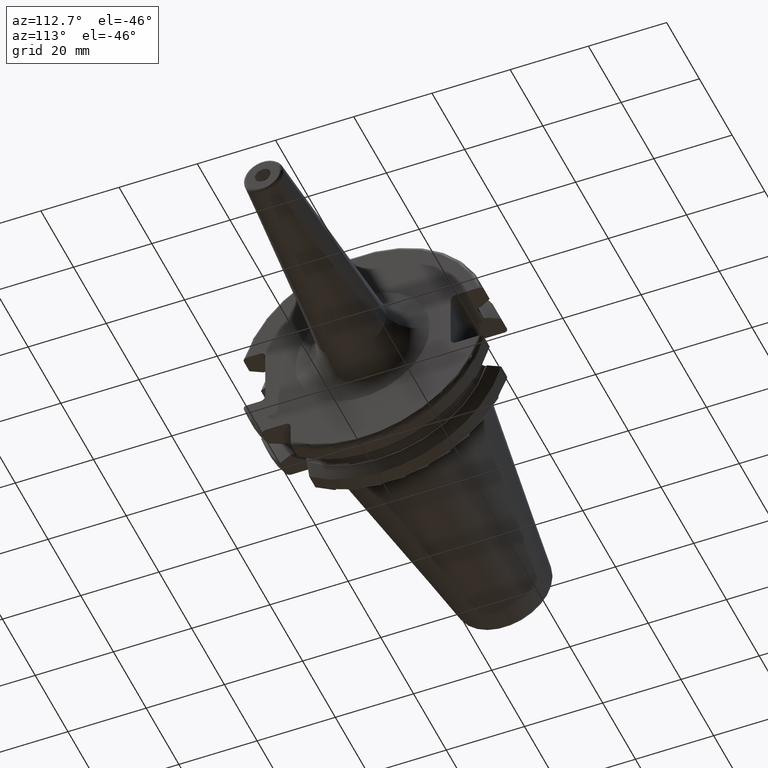
[diagram: clean part render]
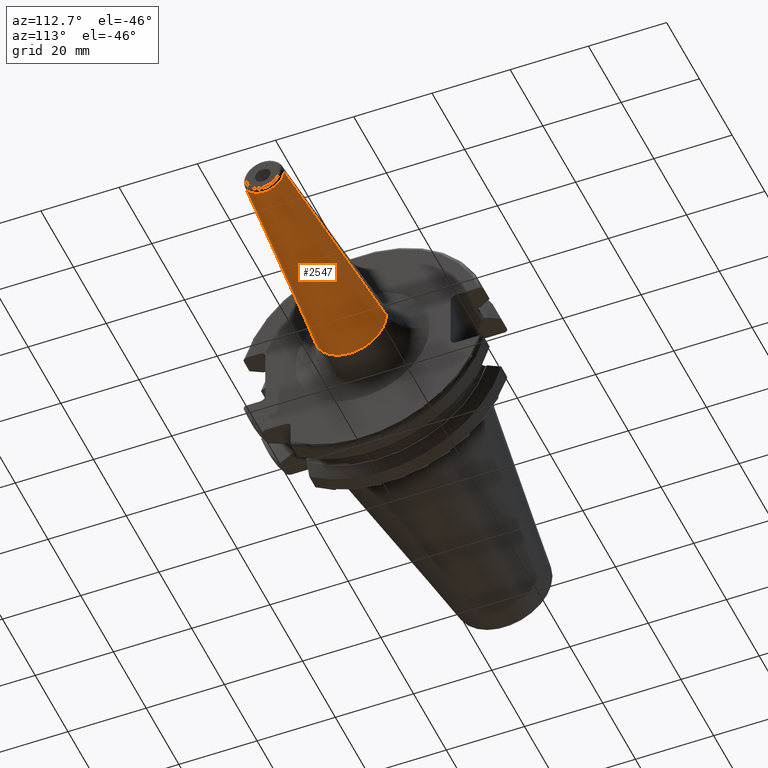
[diagram: same view with one face highlighted and labeled with its STEP entity id]
A machine part, auxiliary view. The second image highlights one B-rep face of the part: STEP entity #2547.
In plain terms, the highlighted conical surface has half-angle 4.5 deg.
Its self-contained STEP definition (entity closure, byte-faithful):
#968=CARTESIAN_POINT('',(7.926276727658E1,0.E0,0.E0));
#969=DIRECTION('',(-1.E0,0.E0,0.E0));
#970=DIRECTION('',(0.E0,1.E0,0.E0));
#971=AXIS2_PLACEMENT_3D('',#968,#969,#970);
#973=DIRECTION('',(-9.969173337331E-1,7.845909572785E-2,5.529981231447E-13));
#974=VECTOR('',#973,5.300383317094E1);
#975=CARTESIAN_POINT('',(7.926276727659E1,5.058021473660E0,
-2.609933703489E-11));
#976=LINE('',#975,#974);
#977=CARTESIAN_POINT('',(2.642232723418E1,0.E0,0.E0));
#978=DIRECTION('',(1.E0,0.E0,0.E0));
#979=DIRECTION('',(0.E0,-1.E0,0.E0));
#980=AXIS2_PLACEMENT_3D('',#977,#978,#979);
#982=DIRECTION('',(-9.969173337331E-1,-7.845909572785E-2,-5.530179165975E-13));
#983=VECTOR('',#982,5.300383317094E1);
#984=CARTESIAN_POINT('',(7.926276727659E1,-5.058021473660E0,
2.609805701141E-11));
#985=LINE('',#984,#983);
#1484=CARTESIAN_POINT('',(2.642232723418E1,-9.216654294361E0,0.E0));
#1485=CARTESIAN_POINT('',(2.642232723418E1,9.216654294361E0,0.E0));
#1486=VERTEX_POINT('',#1484);
#1487=VERTEX_POINT('',#1485);
#1488=CARTESIAN_POINT('',(7.926276727658E1,5.058021473660E0,0.E0));
#1489=CARTESIAN_POINT('',(7.926276727658E1,-5.058021473660E0,0.E0));
#1490=VERTEX_POINT('',#1488);
#1491=VERTEX_POINT('',#1489);
#2536=CARTESIAN_POINT('',(5.284254725538E1,0.E0,0.E0));
#2537=DIRECTION('',(-1.E0,0.E0,0.E0));
#2538=DIRECTION('',(0.E0,1.E0,0.E0));
#2539=AXIS2_PLACEMENT_3D('',#2536,#2537,#2538);
#2540=CONICAL_SURFACE('',#2539,7.137337884011E0,4.5E0);
#2541=ORIENTED_EDGE('',*,*,#2527,.F.);
#2542=ORIENTED_EDGE('',*,*,#2502,.T.);
#2543=ORIENTED_EDGE('',*,*,#2472,.F.);
#2544=ORIENTED_EDGE('',*,*,#2499,.F.);
#2545=EDGE_LOOP('',(#2541,#2542,#2543,#2544));
#2546=FACE_OUTER_BOUND('',#2545,.F.);
#2547=ADVANCED_FACE('',(#2546),#2540,.T.);
#972=CIRCLE('',#971,5.058021473660E0);
#981=CIRCLE('',#980,9.216654294361E0);
#2472=EDGE_CURVE('',#1486,#1487,#981,.T.);
#2499=EDGE_CURVE('',#1491,#1486,#985,.T.);
#2502=EDGE_CURVE('',#1490,#1487,#976,.T.);
#2527=EDGE_CURVE('',#1490,#1491,#972,.T.);